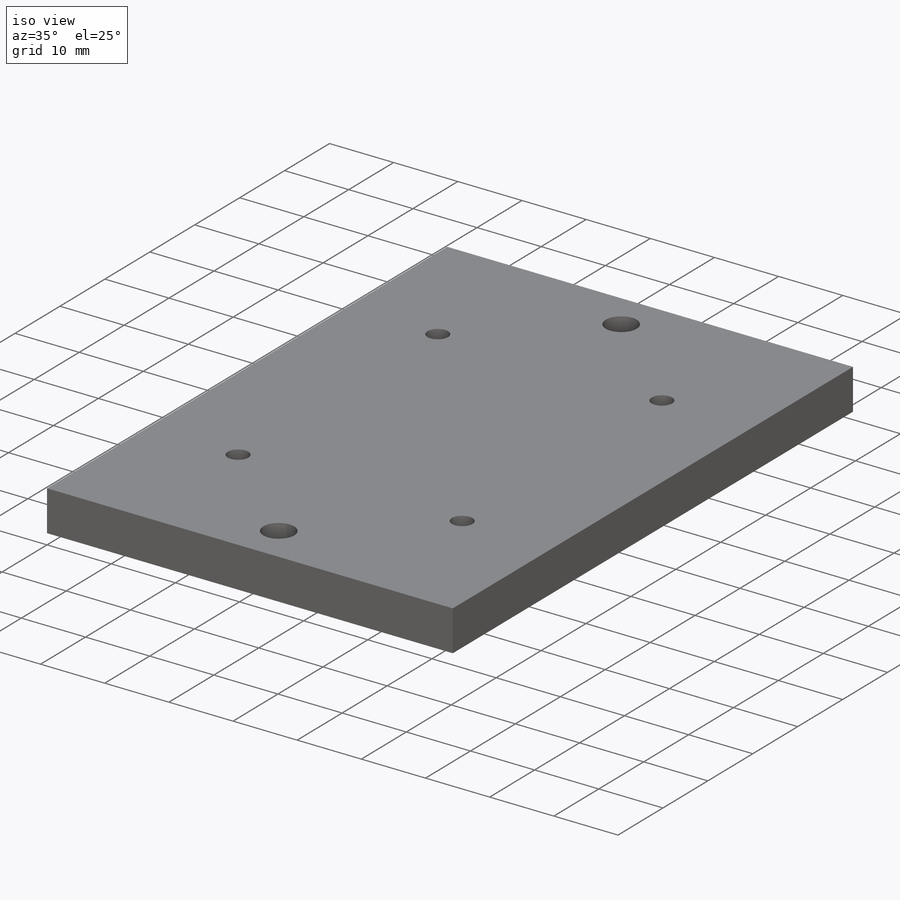
[diagram: iso view]
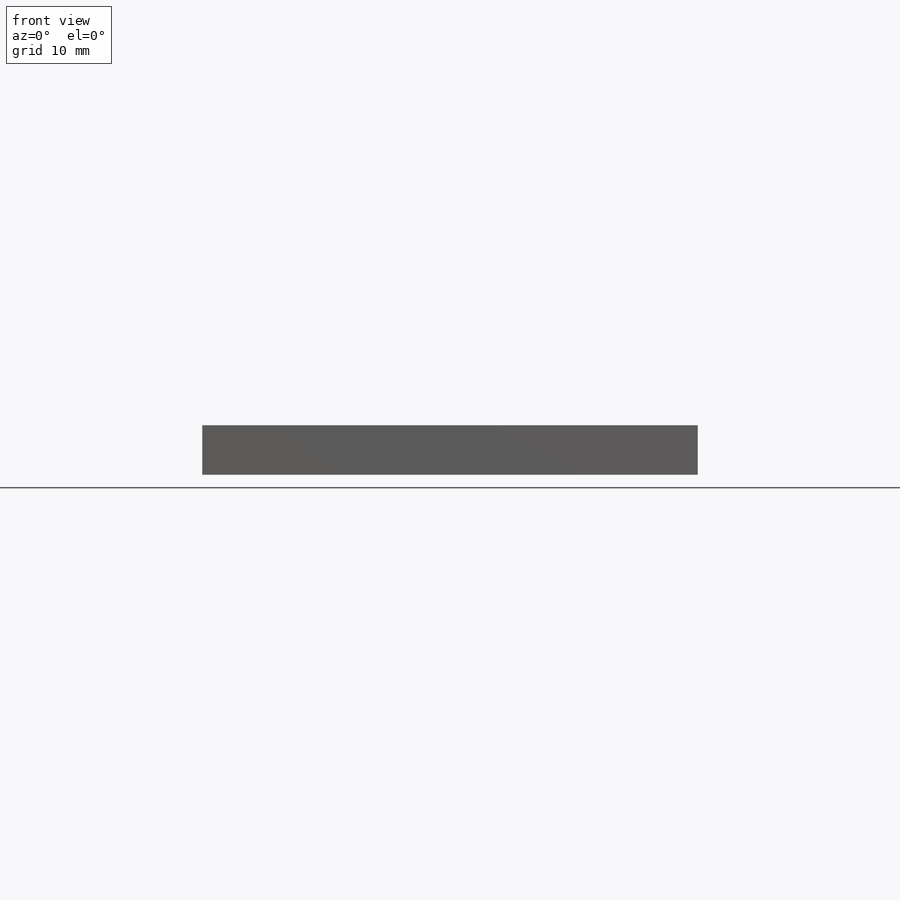
[diagram: front view]
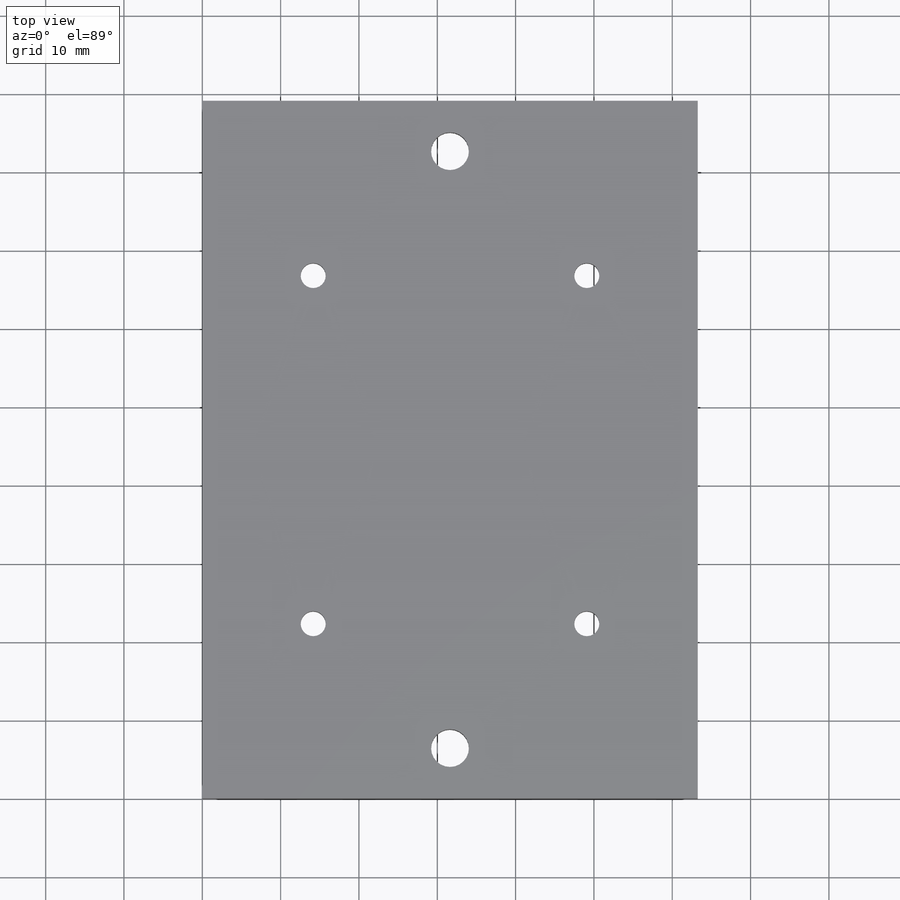
[diagram: top view]
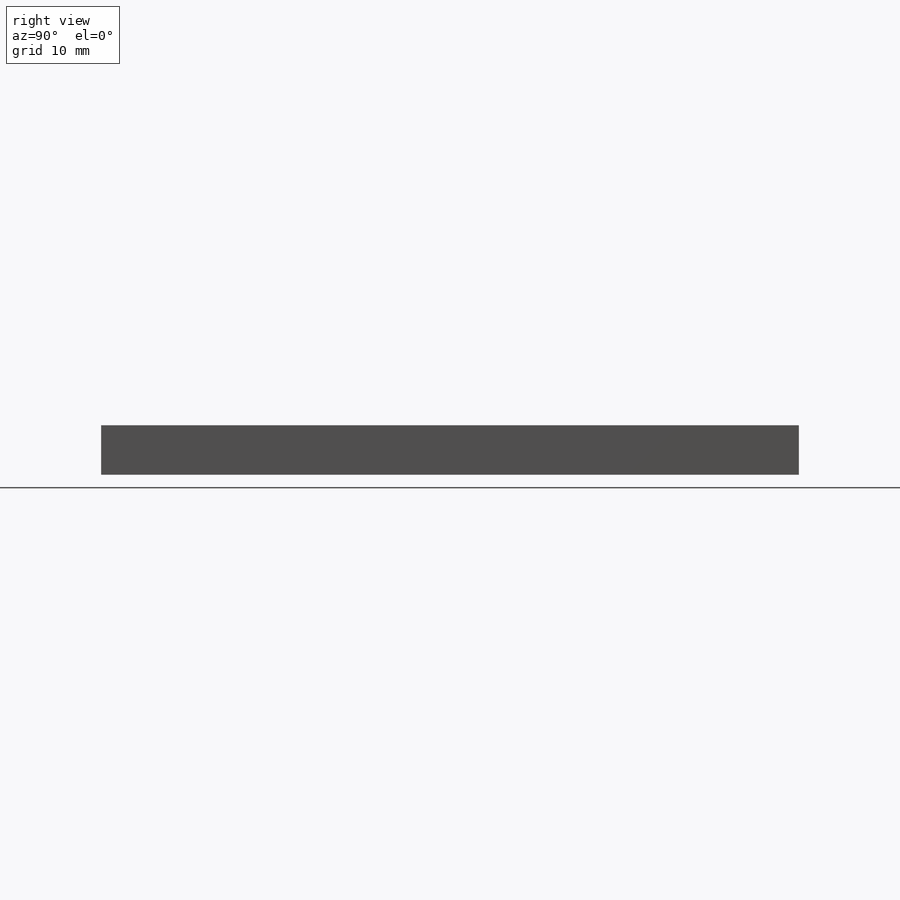
[diagram: right view]
SOLIDWORKS PART (.sldprt)
format: sldprt  version: not decoded by parser v0  size: 214,016 bytes
history: native  units: mm
features: sketch x6, cut_extrude x4, material x1, extrude x1, fillet x1 (+13 scaffold rows collapsed)
feature tree (26):
  scaffold x13  (default folders/planes/origin — collapsed)
  material  "Material <not specified>"
  sketch  "Sketch2"
  extrude  "Boss-Extrude1"  Depth=6.32mm
  sketch  "Sketch3"  dims[D1=~3.595869mm]
  cut_extrude  "Cut-Extrude1"  Depth=6.32mm
  sketch  "Sketch4"  dims[D1=~3.001807mm]
  cut_extrude  "Cut-Extrude2"  Depth=6.32mm
  sketch  "Sketch5"
  cut_extrude  "Cut-Extrude3"  Depth=1.37mm
  fillet  "Fillet1"  Radius=6.35mm
  sketch  "Sketch6"
  sketch  "Sketch7"  dims[D1=~1.385554mm]
  cut_extrude  "Cut-Extrude4"  [1 undecoded]
decode coverage: 8 of 12 modeling features carry decoded parameters
note: ~ marks probable driven/reference dimensions
note: 1 parameter value undecoded
note: suppression state not decoded; provenance and decode notes live in map.json
